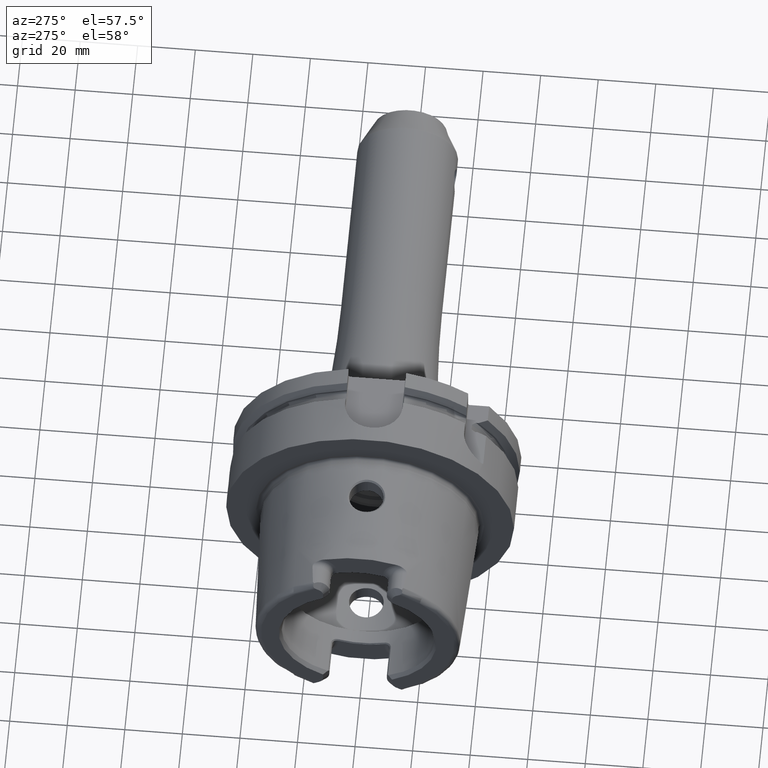
[diagram: clean part render]
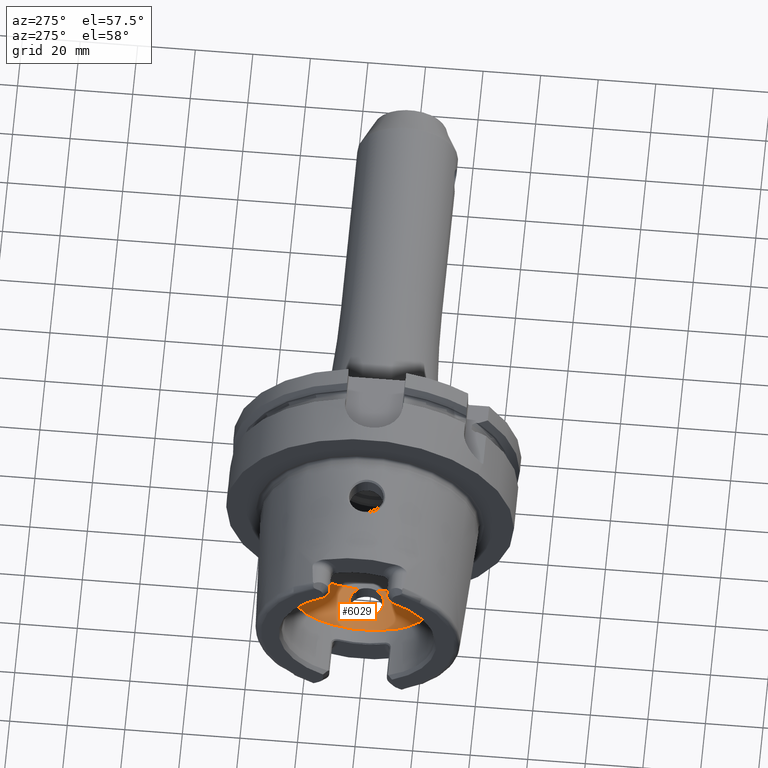
[diagram: same view with one face highlighted and labeled with its STEP entity id]
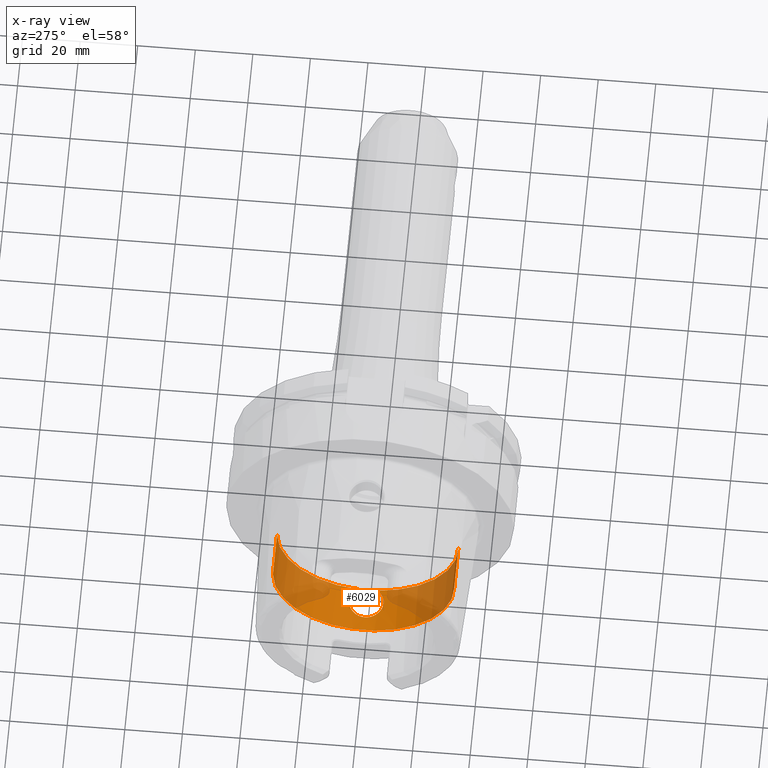
[diagram: x-ray of the same camera — body ghosted, the highlighted face saturated]
A machine part, auxiliary view. The second image highlights one B-rep face of the part: STEP entity #6029.
The next image is the same camera in x-ray: the body ghosted, the highlighted face saturated — about 56% of this face is hidden behind the body in this view.
In plain terms, the highlighted cylindrical surface (partial cylindrical patch) has radius 31.5 mm, axis along (1, 0, 0).
Its self-contained STEP definition (entity closure, byte-faithful):
#2321=CARTESIAN_POINT('',(-2.1E1,0.E0,-3.15E1));
#2322=CARTESIAN_POINT('',(-2.1E1,2.600323061180E-1,-3.15E1));
#2323=CARTESIAN_POINT('',(-2.096661770669E1,7.780092125203E-1,
-3.149361511448E1));
#2324=CARTESIAN_POINT('',(-2.081253217207E1,1.557831356964E0,
-3.146462024253E1));
#2325=CARTESIAN_POINT('',(-2.055574570683E1,2.311276553665E0,
-3.141793916189E1));
#2326=CARTESIAN_POINT('',(-2.020626936033E1,3.016750289566E0,
-3.135769789056E1));
#2327=CARTESIAN_POINT('',(-1.976601122444E1,3.673722414515E0,
-3.128719166027E1));
#2328=CARTESIAN_POINT('',(-1.923610094251E1,4.274362244914E0,
-3.121038529168E1));
#2329=CARTESIAN_POINT('',(-1.863192887465E1,4.797669158712E0,
-3.113374177159E1));
#2330=CARTESIAN_POINT('',(-1.797705422937E1,5.228767812436E0,
-3.106381618043E1));
#2331=CARTESIAN_POINT('',(-1.727328312497E1,5.571149218893E0,
-3.100390713215E1));
#2332=CARTESIAN_POINT('',(-1.652528168161E1,5.820750549838E0,
-3.095774716752E1));
#2333=CARTESIAN_POINT('',(-1.575298047354E1,5.969558117876E0,
-3.092922682144E1));
#2334=CARTESIAN_POINT('',(-1.497973962537E1,6.016520952670E0,
-3.092007277754E1));
#2335=CARTESIAN_POINT('',(-1.420754911889E1,5.964156360884E0,
-3.093027435868E1));
#2336=CARTESIAN_POINT('',(-1.345027932885E1,5.813467932253E0,
-3.095911415652E1));
#2337=CARTESIAN_POINT('',(-1.271967870279E1,5.567549612701E0,
-3.100453585674E1));
#2338=CARTESIAN_POINT('',(-1.202654252881E1,5.230424035329E0,
-3.106352122481E1));
#2339=CARTESIAN_POINT('',(-1.137895123984E1,4.805016643732E0,
-3.113255162345E1));
#2340=CARTESIAN_POINT('',(-1.079033967049E1,4.298901630879E0,
-3.120689445852E1));
#2341=CARTESIAN_POINT('',(-1.027063116687E1,3.719239024479E0,
-3.128166258912E1));
#2342=CARTESIAN_POINT('',(-9.979348326781E0,3.295456177510E0,
-3.132794036358E1));
#2343=CARTESIAN_POINT('',(-9.846794344809E0,3.073185883624E0,
-3.134972932139E1));
#2345=CARTESIAN_POINT('',(-9.846794344809E0,-3.073185883624E0,
-3.134972932139E1));
#2346=CARTESIAN_POINT('',(-9.980267592034E0,-3.296997627679E0,
-3.132778925661E1));
#2347=CARTESIAN_POINT('',(-1.027428374945E1,-3.724632451493E0,
-3.128107498049E1));
#2348=CARTESIAN_POINT('',(-1.080444609373E1,-4.313598102782E0,
-3.120491822807E1));
#2349=CARTESIAN_POINT('',(-1.140518288188E1,-4.825083200941E0,
-3.112945268139E1));
#2350=CARTESIAN_POINT('',(-1.205830347901E1,-5.248491279341E0,
-3.106046243563E1));
#2351=CARTESIAN_POINT('',(-1.275973274351E1,-5.584361629649E0,
-3.100151169777E1));
#2352=CARTESIAN_POINT('',(-1.350804961755E1,-5.829351893619E0,
-3.095611954416E1));
#2353=CARTESIAN_POINT('',(-1.428046132242E1,-5.973692441151E0,
-3.092842373405E1));
#2354=CARTESIAN_POINT('',(-1.505471261768E1,-6.016295068305E0,
-3.092011685270E1));
#2355=CARTESIAN_POINT('',(-1.582807827324E1,-5.959638584634E0,
-3.093115085218E1));
#2356=CARTESIAN_POINT('',(-1.659844154856E1,-5.801063635706E0,
-3.096146461693E1));
#2357=CARTESIAN_POINT('',(-1.734174730538E1,-5.542557460315E0,
-3.100905659353E1));
#2358=CARTESIAN_POINT('',(-1.803699861300E1,-5.193928840565E0,
-3.106968398001E1));
#2359=CARTESIAN_POINT('',(-1.868261407792E1,-4.758494760219E0,
-3.113976584786E1));
#2360=CARTESIAN_POINT('',(-1.927492183405E1,-4.234938547310E0,
-3.121575046881E1));
#2361=CARTESIAN_POINT('',(-1.979338991235E1,-3.637181048324E0,
-3.129142862807E1));
#2362=CARTESIAN_POINT('',(-2.022350943177E1,-2.985970626913E0,
-3.136060026546E1));
#2363=CARTESIAN_POINT('',(-2.056558062715E1,-2.286490117879E0,
-3.141969944443E1));
#2364=CARTESIAN_POINT('',(-2.081663060842E1,-1.540888222611E0,
-3.146538707330E1));
#2365=CARTESIAN_POINT('',(-2.096737197130E1,-7.693136660163E-1,
-3.149375977797E1));
#2366=CARTESIAN_POINT('',(-2.1E1,-2.570924323293E-1,-3.15E1));
#2367=CARTESIAN_POINT('',(-2.1E1,0.E0,-3.15E1));
#2369=CARTESIAN_POINT('',(-9.846794344809E0,0.E0,0.E0));
#2370=DIRECTION('',(-1.E0,0.E0,0.E0));
#2371=DIRECTION('',(0.E0,-9.756145662299E-2,-9.952295022665E-1));
#2372=AXIS2_PLACEMENT_3D('',#2369,#2370,#2371);
#2374=DIRECTION('',(-1.E0,0.E0,0.E0));
#2375=VECTOR('',#2374,1.640380457843E1);
#2376=CARTESIAN_POINT('',(-9.846794344809E0,-3.15E1,0.E0));
#2377=LINE('',#2376,#2375);
#2378=DIRECTION('',(-1.E0,0.E0,0.E0));
#2379=VECTOR('',#2378,1.640380457843E1);
#2380=CARTESIAN_POINT('',(-9.846794344809E0,3.15E1,0.E0));
#2381=LINE('',#2380,#2379);
#2382=CARTESIAN_POINT('',(-9.846794344809E0,0.E0,0.E0));
#2383=DIRECTION('',(-1.E0,0.E0,0.E0));
#2384=DIRECTION('',(0.E0,1.E0,0.E0));
#2385=AXIS2_PLACEMENT_3D('',#2382,#2383,#2384);
#2387=CARTESIAN_POINT('',(-9.846794344809E0,3.073185883624E0,
-3.134972932139E1));
#2418=CARTESIAN_POINT('',(-9.846794344809E0,-3.073185883624E0,
-3.134972932139E1));
#2621=CARTESIAN_POINT('',(-2.625059892324E1,0.E0,0.E0));
#2622=DIRECTION('',(-1.E0,0.E0,0.E0));
#2623=DIRECTION('',(0.E0,1.E0,0.E0));
#2624=AXIS2_PLACEMENT_3D('',#2621,#2622,#2623);
#2913=CARTESIAN_POINT('',(-9.846794344809E0,3.15E1,0.E0));
#2914=VERTEX_POINT('',#2913);
#2915=CARTESIAN_POINT('',(-2.625059892324E1,3.15E1,0.E0));
#2916=VERTEX_POINT('',#2915);
#2925=CARTESIAN_POINT('',(-9.846794344809E0,-3.15E1,0.E0));
#2926=VERTEX_POINT('',#2925);
#2927=CARTESIAN_POINT('',(-2.625059892324E1,-3.15E1,0.E0));
#2928=VERTEX_POINT('',#2927);
#3096=VERTEX_POINT('',#2387);
#3098=VERTEX_POINT('',#2418);
#3099=VERTEX_POINT('',#2321);
#6012=CARTESIAN_POINT('',(-5.3125E1,0.E0,0.E0));
#6013=DIRECTION('',(1.E0,0.E0,0.E0));
#6014=DIRECTION('',(0.E0,-1.E0,0.E0));
#6015=AXIS2_PLACEMENT_3D('',#6012,#6013,#6014);
#6016=CYLINDRICAL_SURFACE('',#6015,3.15E1);
#6017=ORIENTED_EDGE('',*,*,#5966,.F.);
#6018=ORIENTED_EDGE('',*,*,#5694,.F.);
#6020=ORIENTED_EDGE('',*,*,#6019,.T.);
#6021=ORIENTED_EDGE('',*,*,#6005,.T.);
#6023=ORIENTED_EDGE('',*,*,#6022,.F.);
#6024=ORIENTED_EDGE('',*,*,#6001,.F.);
#6026=ORIENTED_EDGE('',*,*,#6025,.T.);
#6027=EDGE_LOOP('',(#6017,#6018,#6020,#6021,#6023,#6024,#6026));
#6028=FACE_OUTER_BOUND('',#6027,.F.);
#6029=ADVANCED_FACE('',(#6028),#6016,.F.);
#2344=B_SPLINE_CURVE_WITH_KNOTS('',3,(#2321,#2322,#2323,#2324,#2325,#2326,#2327,
#2328,#2329,#2330,#2331,#2332,#2333,#2334,#2335,#2336,#2337,#2338,#2339,#2340,
#2341,#2342,#2343),.UNSPECIFIED.,.F.,.F.,(4,1,1,1,1,1,1,1,1,1,1,1,1,1,1,1,1,1,1,
1,4),(0.E0,5.E-2,1.E-1,1.5E-1,2.E-1,2.5E-1,3.E-1,3.5E-1,4.E-1,4.5E-1,5.E-1,
5.5E-1,6.E-1,6.5E-1,7.E-1,7.5E-1,8.E-1,8.5E-1,9.E-1,9.5E-1,1.E0),.UNSPECIFIED.);
#2368=B_SPLINE_CURVE_WITH_KNOTS('',3,(#2345,#2346,#2347,#2348,#2349,#2350,#2351,
#2352,#2353,#2354,#2355,#2356,#2357,#2358,#2359,#2360,#2361,#2362,#2363,#2364,
#2365,#2366,#2367),.UNSPECIFIED.,.F.,.F.,(4,1,1,1,1,1,1,1,1,1,1,1,1,1,1,1,1,1,1,
1,4),(0.E0,5.E-2,1.E-1,1.5E-1,2.E-1,2.5E-1,3.E-1,3.5E-1,4.E-1,4.5E-1,5.E-1,
5.5E-1,6.E-1,6.5E-1,7.E-1,7.5E-1,8.E-1,8.5E-1,9.E-1,9.5E-1,1.E0),.UNSPECIFIED.);
#2373=CIRCLE('',#2372,3.15E1);
#2386=CIRCLE('',#2385,3.15E1);
#2625=CIRCLE('',#2624,3.15E1);
#5694=EDGE_CURVE('',#3098,#3099,#2368,.T.);
#5966=EDGE_CURVE('',#3099,#3096,#2344,.T.);
#6001=EDGE_CURVE('',#2914,#2916,#2381,.T.);
#6005=EDGE_CURVE('',#2926,#2928,#2377,.T.);
#6019=EDGE_CURVE('',#3098,#2926,#2373,.T.);
#6022=EDGE_CURVE('',#2916,#2928,#2625,.T.);
#6025=EDGE_CURVE('',#2914,#3096,#2386,.T.);